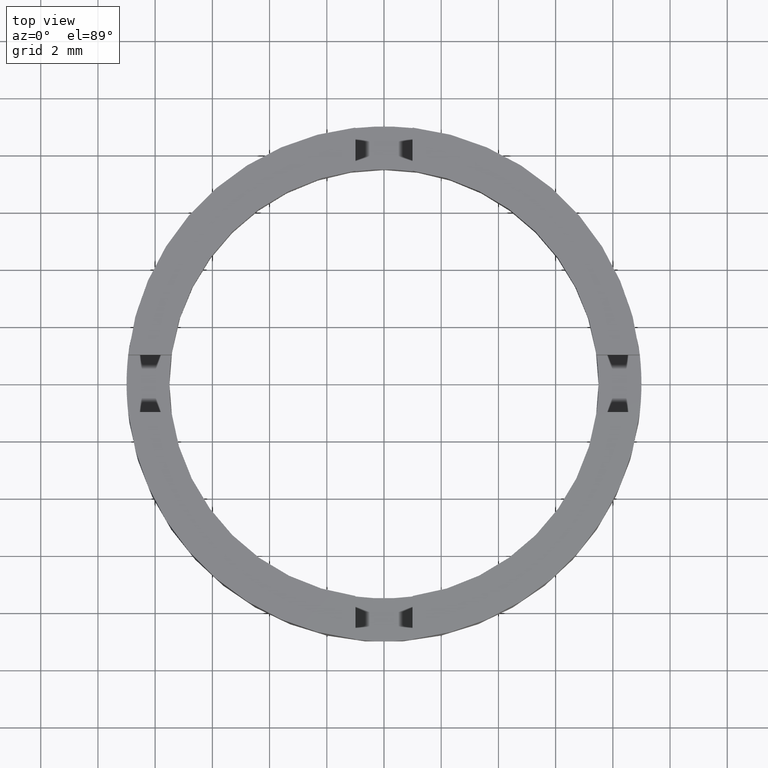
[diagram: clean part render]
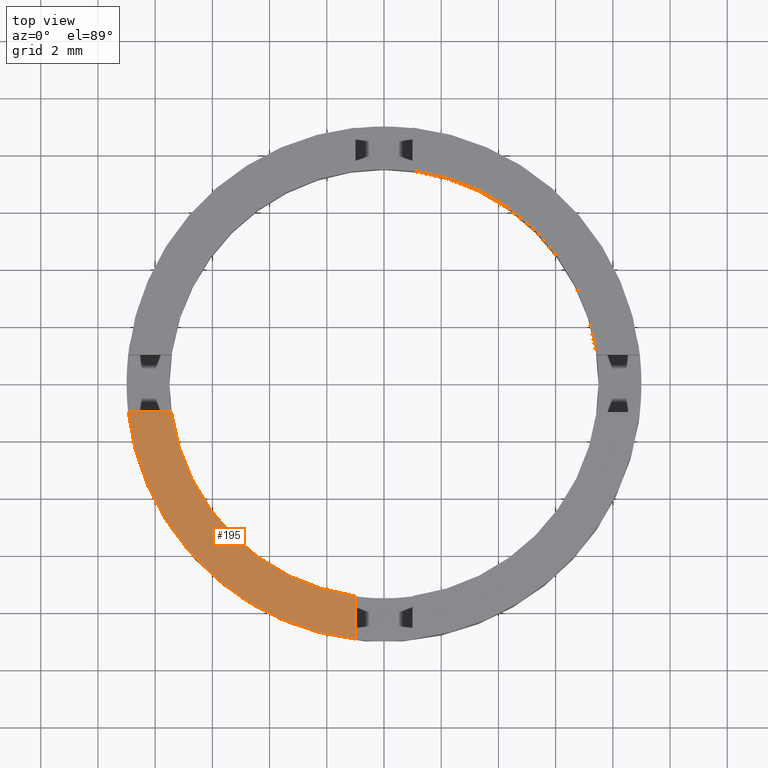
[diagram: same view with one face highlighted and labeled with its STEP entity id]
A machine part, top view. The second image highlights one B-rep face of the part: STEP entity #195.
In plain terms, the highlighted planar face has unit normal (0, 0, 1).
Its self-contained STEP definition (entity closure, byte-faithful):
#14 = VERTEX_POINT ( 'NONE', #136 ) ;
#54 = CIRCLE ( 'NONE', #502, 9.000000000000000000 ) ;
#68 = DIRECTION ( 'NONE',  ( 0.000000000000000000, 0.000000000000000000, 1.000000000000000000 ) ) ;
#69 = LINE ( 'NONE', #573, #330 ) ;
#81 = LINE ( 'NONE', #716, #614 ) ;
#88 = EDGE_CURVE ( 'NONE', #14, #97, #54, .T. ) ;
#97 = VERTEX_POINT ( 'NONE', #499 ) ;
#136 = CARTESIAN_POINT ( 'NONE',  ( -8.944271909999160997, -0.9999999999999676925, 2.500000000000000000 ) ) ;
#138 = CARTESIAN_POINT ( 'NONE',  ( 0.000000000000000000, 0.000000000000000000, 2.500000000000000000 ) ) ;
#160 = EDGE_LOOP ( 'NONE', ( #687, #776, #752, #743 ) ) ;
#172 = VERTEX_POINT ( 'NONE', #684 ) ;
#189 = DIRECTION ( 'NONE',  ( 1.000000000000000000, 0.000000000000000000, 0.000000000000000000 ) ) ;
#195 = ADVANCED_FACE ( 'NONE', ( #311 ), #630, .T. ) ;
#234 = DIRECTION ( 'NONE',  ( 1.000000000000000000, 0.000000000000000000, -0.000000000000000000 ) ) ;
#278 = DIRECTION ( 'NONE',  ( 0.000000000000000000, 1.000000000000000000, -0.000000000000000000 ) ) ;
#311 = FACE_OUTER_BOUND ( 'NONE', #160, .T. ) ;
#330 = VECTOR ( 'NONE', #278, 1000.000000000000000 ) ;
#339 = DIRECTION ( 'NONE',  ( 0.000000000000000000, 0.000000000000000000, 1.000000000000000000 ) ) ;
#350 = AXIS2_PLACEMENT_3D ( 'NONE', #423, #339, #763 ) ;
#358 = CIRCLE ( 'NONE', #350, 7.500000000000000000 ) ;
#417 = DIRECTION ( 'NONE',  ( 1.000000000000000000, -3.734474149672292349E-15, 0.000000000000000000 ) ) ;
#423 = CARTESIAN_POINT ( 'NONE',  ( 0.000000000000000000, 0.000000000000000000, 2.500000000000000000 ) ) ;
#479 = AXIS2_PLACEMENT_3D ( 'NONE', #554, #68, #234 ) ;
#488 = EDGE_CURVE ( 'NONE', #97, #172, #69, .T. ) ;
#499 = CARTESIAN_POINT ( 'NONE',  ( -0.9999999999999986677, -8.944271909999157444, 2.500000000000000000 ) ) ;
#502 = AXIS2_PLACEMENT_3D ( 'NONE', #138, #652, #189 ) ;
#518 = VERTEX_POINT ( 'NONE', #649 ) ;
#554 = CARTESIAN_POINT ( 'NONE',  ( 0.000000000000000000, 0.000000000000000000, 2.500000000000000000 ) ) ;
#558 = EDGE_CURVE ( 'NONE', #14, #518, #81, .T. ) ;
#573 = CARTESIAN_POINT ( 'NONE',  ( -0.9999999999999986677, 0.000000000000000000, 2.500000000000000000 ) ) ;
#613 = EDGE_CURVE ( 'NONE', #518, #172, #358, .T. ) ;
#614 = VECTOR ( 'NONE', #417, 1000.000000000000000 ) ;
#630 = PLANE ( 'NONE',  #479 ) ;
#649 = CARTESIAN_POINT ( 'NONE',  ( -7.433034373659256566, -0.9999999999999733546, 2.500000000000000000 ) ) ;
#652 = DIRECTION ( 'NONE',  ( 0.000000000000000000, 0.000000000000000000, 1.000000000000000000 ) ) ;
#684 = CARTESIAN_POINT ( 'NONE',  ( -0.9999999999999986677, -7.433034373659253013, 2.500000000000000000 ) ) ;
#687 = ORIENTED_EDGE ( 'NONE', *, *, #558, .F. ) ;
#716 = CARTESIAN_POINT ( 'NONE',  ( -3.734474149672297082E-15, -1.000000000000001110, 2.500000000000000000 ) ) ;
#743 = ORIENTED_EDGE ( 'NONE', *, *, #613, .F. ) ;
#752 = ORIENTED_EDGE ( 'NONE', *, *, #488, .T. ) ;
#763 = DIRECTION ( 'NONE',  ( 1.000000000000000000, 0.000000000000000000, 0.000000000000000000 ) ) ;
#776 = ORIENTED_EDGE ( 'NONE', *, *, #88, .T. ) ;